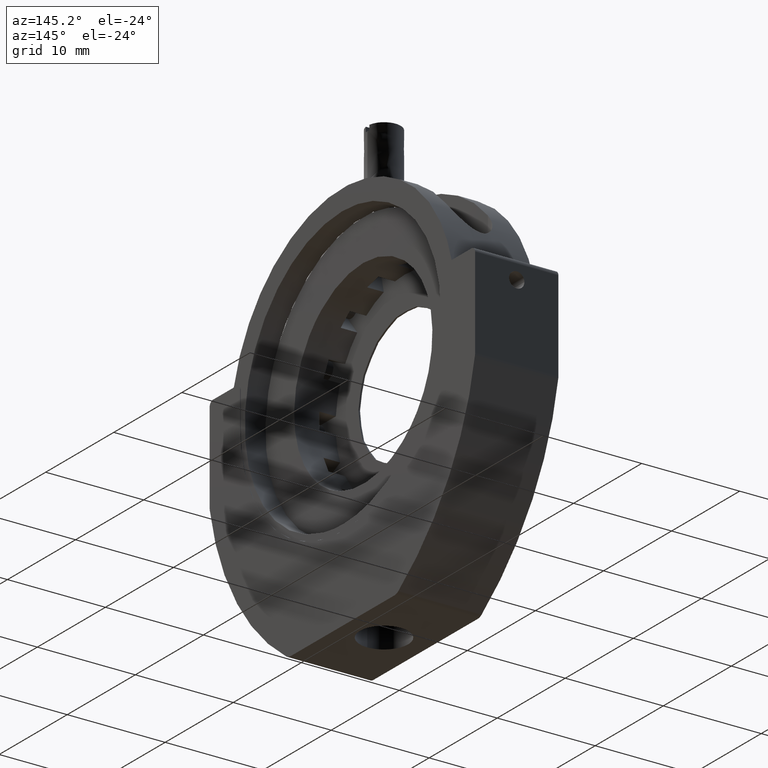
[diagram: clean part render]
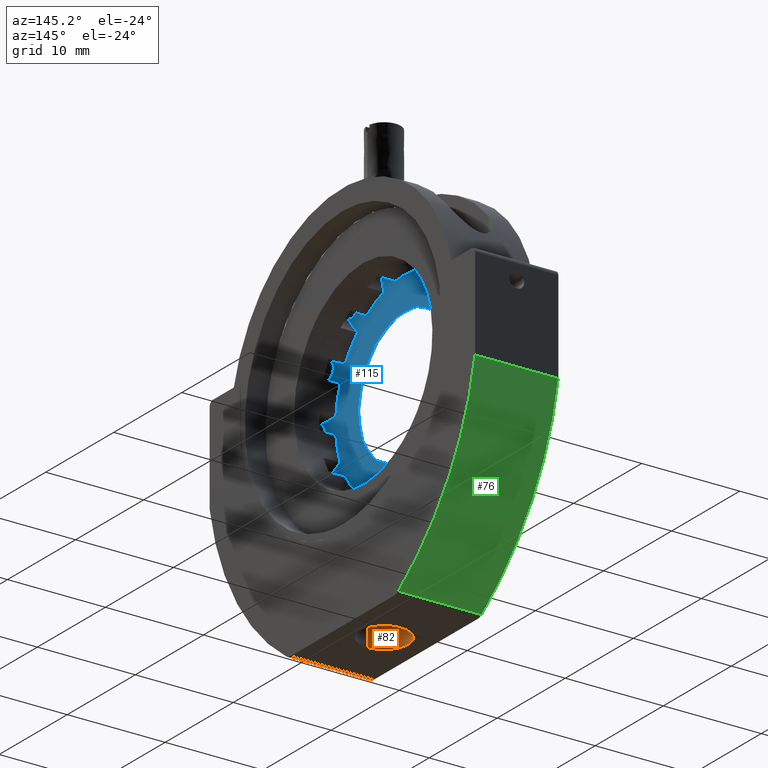
[diagram: same view with three faces highlighted in distinct colors, each labeled with its STEP entity id]
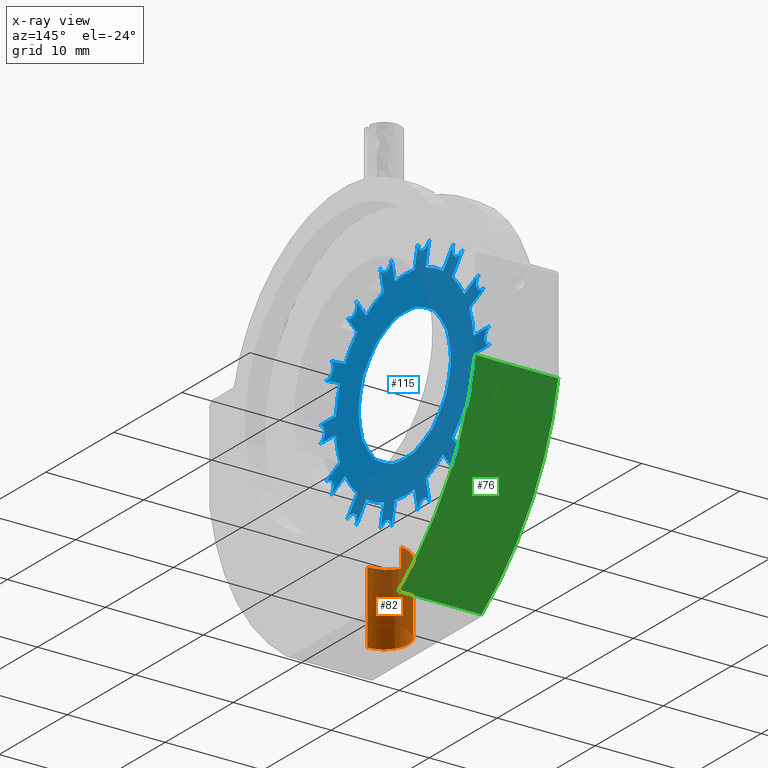
[diagram: x-ray of the same camera — body ghosted, the three highlighted faces saturated]
A machine part, auxiliary view with three faces highlighted in distinct colors.
The next image is the same camera in x-ray (body ghosted, the three faces saturated) — at least one of them is partly hidden behind the body in this view.
Their STEP definitions:

[orange] entity #82 — the highlighted face is a freeform B-spline surface patch.
#82=ADVANCED_FACE('',(#404),#5503,.T.);
#404=FACE_OUTER_BOUND('',#728,.T.);
#728=EDGE_LOOP('',(#1217,#1218,#1219,#1220));
#1217=ORIENTED_EDGE('',*,*,#3006,.T.);
#1218=ORIENTED_EDGE('',*,*,#3002,.F.);
#1219=ORIENTED_EDGE('',*,*,#3003,.F.);
#1220=ORIENTED_EDGE('',*,*,#3004,.F.);
#3002=EDGE_CURVE('',#5005,#5004,#3954,.T.);
#3003=EDGE_CURVE('',#5006,#5005,#4436,.T.);
#3004=EDGE_CURVE('',#5007,#5006,#4437,.T.);
#3006=EDGE_CURVE('',#5007,#5004,#4439,.T.);
#3954=(
BOUNDED_CURVE()
B_SPLINE_CURVE(2,(#9816,#9817,#9818,#9819,#9820),.UNSPECIFIED.,.F.,.F.)
B_SPLINE_CURVE_WITH_KNOTS((3,2,3),(0.,3.86180276942525,7.72360553885051),
 .UNSPECIFIED.)
CURVE()
GEOMETRIC_REPRESENTATION_ITEM()
RATIONAL_B_SPLINE_CURVE((1.,0.707106781186548,1.,0.707106781186548,1.))
REPRESENTATION_ITEM('')
);
#4436=B_SPLINE_CURVE_WITH_KNOTS('',1,(#9821,#9822),.UNSPECIFIED.,.F.,.F.,
(2,2),(-7.3841862676114,0.),.UNSPECIFIED.);
#4437=B_SPLINE_CURVE_WITH_KNOTS('',3,(#9823,#9824,#9825,#9826,#9827,#9828,
#9829,#9830,#9831,#9832),.UNSPECIFIED.,.F.,.F.,(4,2,2,2,4),(0.,0.185511604685136,
0.371027746996306,0.556543889307472,0.742055493992613),.UNSPECIFIED.);
#4439=B_SPLINE_CURVE_WITH_KNOTS('',1,(#9843,#9844),.UNSPECIFIED.,.F.,.F.,
(2,2),(0.85841862676114,8.24260489437255),.UNSPECIFIED.);
#5004=VERTEX_POINT('',#9077);
#5005=VERTEX_POINT('',#9078);
#5006=VERTEX_POINT('',#9079);
#5007=VERTEX_POINT('',#9080);
#5503=(
BOUNDED_SURFACE()
B_SPLINE_SURFACE(1,2,((#6499,#6500,#6501,#6502,#6503,#6504,#6505,#6506,
#6507),(#6508,#6509,#6510,#6511,#6512,#6513,#6514,#6515,#6516)),
 .UNSPECIFIED.,.F.,.F.,.F.)
B_SPLINE_SURFACE_WITH_KNOTS((2,2),(3,2,2,2,3),(0.,9.10102352113369),(0.,
1.5707963267949,3.14159265358979,4.71238898038469,6.28318530717959),
 .UNSPECIFIED.)
GEOMETRIC_REPRESENTATION_ITEM()
RATIONAL_B_SPLINE_SURFACE(((1.,0.707106781186548,1.,0.707106781186548,1.,
0.707106781186548,1.,0.707106781186548,1.),(1.,0.707106781186548,1.,0.707106781186548,
1.,0.707106781186548,1.,0.707106781186548,1.)))
REPRESENTATION_ITEM('')
SURFACE()
);
#6499=CARTESIAN_POINT('',(16.0730769230769,14.0415,-12.9341307033285));
#6500=CARTESIAN_POINT('',(13.6145769230769,14.0415,-12.9341307033285));
#6501=CARTESIAN_POINT('',(13.6145769230769,16.5,-12.9341307033285));
#6502=CARTESIAN_POINT('',(13.6145769230769,18.9585,-12.9341307033285));
#6503=CARTESIAN_POINT('',(16.0730769230769,18.9585,-12.9341307033285));
#6504=CARTESIAN_POINT('',(18.5315769230769,18.9585,-12.9341307033285));
#6505=CARTESIAN_POINT('',(18.5315769230769,16.5,-12.9341307033285));
#6506=CARTESIAN_POINT('',(18.5315769230769,14.0415,-12.9341307033285));
#6507=CARTESIAN_POINT('',(16.0730769230769,14.0415,-12.9341307033285));
#6508=CARTESIAN_POINT('',(16.0730769230769,14.0415,-22.0351542244622));
#6509=CARTESIAN_POINT('',(13.6145769230769,14.0415,-22.0351542244622));
#6510=CARTESIAN_POINT('',(13.6145769230769,16.5,-22.0351542244622));
#6511=CARTESIAN_POINT('',(13.6145769230769,18.9585,-22.0351542244622));
#6512=CARTESIAN_POINT('',(16.0730769230769,18.9585,-22.0351542244622));
#6513=CARTESIAN_POINT('',(18.5315769230769,18.9585,-22.0351542244622));
#6514=CARTESIAN_POINT('',(18.5315769230769,16.5,-22.0351542244622));
#6515=CARTESIAN_POINT('',(18.5315769230769,14.0415,-22.0351542244622));
#6516=CARTESIAN_POINT('',(16.0730769230769,14.0415,-22.0351542244622));
#9077=CARTESIAN_POINT('',(16.0730769230769,14.0415,-21.1767355977011));
#9078=CARTESIAN_POINT('',(16.0730769230769,18.9585,-21.1767355977011));
#9079=CARTESIAN_POINT('',(16.0730769230769,18.9585,-13.7925493300896));
#9080=CARTESIAN_POINT('',(16.0730769230769,14.0415,-13.7925493300896));
#9816=CARTESIAN_POINT('',(16.0730769230769,18.9585,-21.1767355977011));
#9817=CARTESIAN_POINT('',(13.6145769230769,18.9585,-21.1767355977011));
#9818=CARTESIAN_POINT('',(13.6145769230769,16.5,-21.1767355977011));
#9819=CARTESIAN_POINT('',(13.6145769230769,14.0415,-21.1767355977011));
#9820=CARTESIAN_POINT('',(16.0730769230769,14.0415,-21.1767355977011));
#9821=CARTESIAN_POINT('',(16.0730769230769,18.9585,-13.7925493300896));
#9822=CARTESIAN_POINT('',(16.0730769230769,18.9585,-21.1767355977011));
#9823=CARTESIAN_POINT('',(16.0730769230769,14.0415,-13.7925493300896));
#9824=CARTESIAN_POINT('',(15.4161760556134,14.0415,-13.7925493300896));
#9825=CARTESIAN_POINT('',(14.7872450014894,14.3089936580834,-13.8369499292608));
#9826=CARTESIAN_POINT('',(13.8820759316481,15.2141511687448,-13.9328507090408));
#9827=CARTESIAN_POINT('',(13.6145769230769,15.8432355327081,-13.9767355977011));
#9828=CARTESIAN_POINT('',(13.6145769230769,17.1567644672919,-13.9767355977011));
#9829=CARTESIAN_POINT('',(13.8820759316481,17.7858488312551,-13.9328507090408));
#9830=CARTESIAN_POINT('',(14.7872450014893,18.6910063419166,-13.8369499292608));
#9831=CARTESIAN_POINT('',(15.4161760556134,18.9585,-13.7925493300896));
#9832=CARTESIAN_POINT('',(16.0730769230769,18.9585,-13.7925493300896));
#9843=CARTESIAN_POINT('',(16.0730769230769,14.0415,-13.7925493300896));
#9844=CARTESIAN_POINT('',(16.0730769230769,14.0415,-21.1767355977011));

[blue] entity #115 — the highlighted planar face has unit normal (1, 0, 0).
#47=FACE_BOUND('',#783,.T.);
#115=ADVANCED_FACE('',(#437,#47),#5667,.T.);
#437=FACE_OUTER_BOUND('',#782,.T.);
#782=EDGE_LOOP('',(#1440,#1441,#1442,#1443,#1444,#1445,#1446,#1447,#1448,
#1449,#1450,#1451,#1452,#1453,#1454,#1455,#1456,#1457,#1458,#1459,#1460,
#1461,#1462,#1463,#1464,#1465,#1466,#1467,#1468,#1469,#1470,#1471,#1472,
#1473,#1474,#1475,#1476,#1477,#1478,#1479,#1480,#1481,#1482,#1483,#1484,
#1485,#1486,#1487,#1488,#1489,#1490,#1491,#1492,#1493,#1494,#1495,#1496,
#1497));
#783=EDGE_LOOP('',(#1498,#1499,#1500,#1501,#1502,#1503,#1504,#1505,#1506,
#1507,#1508,#1509,#1510,#1511));
#1440=ORIENTED_EDGE('',*,*,#3644,.F.);
#1441=ORIENTED_EDGE('',*,*,#3332,.F.);
#1442=ORIENTED_EDGE('',*,*,#3647,.F.);
#1443=ORIENTED_EDGE('',*,*,#3739,.F.);
#1444=ORIENTED_EDGE('',*,*,#3436,.F.);
#1445=ORIENTED_EDGE('',*,*,#3415,.F.);
#1446=ORIENTED_EDGE('',*,*,#3431,.F.);
#1447=ORIENTED_EDGE('',*,*,#3737,.F.);
#1448=ORIENTED_EDGE('',*,*,#3393,.F.);
#1449=ORIENTED_EDGE('',*,*,#3376,.F.);
#1450=ORIENTED_EDGE('',*,*,#3659,.F.);
#1451=ORIENTED_EDGE('',*,*,#3733,.F.);
#1452=ORIENTED_EDGE('',*,*,#3661,.F.);
#1453=ORIENTED_EDGE('',*,*,#3449,.F.);
#1454=ORIENTED_EDGE('',*,*,#3663,.F.);
#1455=ORIENTED_EDGE('',*,*,#3729,.F.);
#1456=ORIENTED_EDGE('',*,*,#3665,.F.);
#1457=ORIENTED_EDGE('',*,*,#3533,.F.);
#1458=ORIENTED_EDGE('',*,*,#3668,.F.);
#1459=ORIENTED_EDGE('',*,*,#3726,.F.);
#1460=ORIENTED_EDGE('',*,*,#3773,.F.);
#1461=ORIENTED_EDGE('',*,*,#3589,.F.);
#1462=ORIENTED_EDGE('',*,*,#3566,.F.);
#1463=ORIENTED_EDGE('',*,*,#3583,.F.);
#1464=ORIENTED_EDGE('',*,*,#3770,.F.);
#1465=ORIENTED_EDGE('',*,*,#3505,.F.);
#1466=ORIENTED_EDGE('',*,*,#3487,.F.);
#1467=ORIENTED_EDGE('',*,*,#3682,.F.);
#1468=ORIENTED_EDGE('',*,*,#3767,.F.);
#1469=ORIENTED_EDGE('',*,*,#3218,.F.);
#1470=ORIENTED_EDGE('',*,*,#3203,.F.);
#1471=ORIENTED_EDGE('',*,*,#3689,.F.);
#1472=ORIENTED_EDGE('',*,*,#3763,.F.);
#1473=ORIENTED_EDGE('',*,*,#3616,.F.);
#1474=ORIENTED_EDGE('',*,*,#3595,.F.);
#1475=ORIENTED_EDGE('',*,*,#3611,.F.);
#1476=ORIENTED_EDGE('',*,*,#3760,.F.);
#1477=ORIENTED_EDGE('',*,*,#3168,.F.);
#1478=ORIENTED_EDGE('',*,*,#3151,.F.);
#1479=ORIENTED_EDGE('',*,*,#3623,.F.);
#1480=ORIENTED_EDGE('',*,*,#3757,.T.);
#1481=ORIENTED_EDGE('',*,*,#3756,.T.);
#1482=ORIENTED_EDGE('',*,*,#3124,.F.);
#1483=ORIENTED_EDGE('',*,*,#3107,.F.);
#1484=ORIENTED_EDGE('',*,*,#3628,.F.);
#1485=ORIENTED_EDGE('',*,*,#3752,.F.);
#1486=ORIENTED_EDGE('',*,*,#3078,.T.);
#1487=ORIENTED_EDGE('',*,*,#3061,.F.);
#1488=ORIENTED_EDGE('',*,*,#3633,.F.);
#1489=ORIENTED_EDGE('',*,*,#3749,.F.);
#1490=ORIENTED_EDGE('',*,*,#3635,.F.);
#1491=ORIENTED_EDGE('',*,*,#3249,.F.);
#1492=ORIENTED_EDGE('',*,*,#3637,.F.);
#1493=ORIENTED_EDGE('',*,*,#3745,.F.);
#1494=ORIENTED_EDGE('',*,*,#3639,.F.);
#1495=ORIENTED_EDGE('',*,*,#3295,.F.);
#1496=ORIENTED_EDGE('',*,*,#3642,.F.);
#1497=ORIENTED_EDGE('',*,*,#3742,.F.);
#1498=ORIENTED_EDGE('',*,*,#3069,.T.);
#1499=ORIENTED_EDGE('',*,*,#3103,.F.);
#1500=ORIENTED_EDGE('',*,*,#3147,.F.);
#1501=ORIENTED_EDGE('',*,*,#3212,.F.);
#1502=ORIENTED_EDGE('',*,*,#3209,.F.);
#1503=ORIENTED_EDGE('',*,*,#3483,.F.);
#1504=ORIENTED_EDGE('',*,*,#3559,.F.);
#1505=ORIENTED_EDGE('',*,*,#3474,.F.);
#1506=ORIENTED_EDGE('',*,*,#3385,.F.);
#1507=ORIENTED_EDGE('',*,*,#3384,.F.);
#1508=ORIENTED_EDGE('',*,*,#3355,.F.);
#1509=ORIENTED_EDGE('',*,*,#3318,.F.);
#1510=ORIENTED_EDGE('',*,*,#3281,.F.);
#1511=ORIENTED_EDGE('',*,*,#3070,.T.);
#3061=EDGE_CURVE('',#5063,#5062,#3982,.T.);
#3069=EDGE_CURVE('',#5080,#5082,#3987,.T.);
#3070=EDGE_CURVE('',#5083,#5080,#3988,.T.);
#3078=EDGE_CURVE('',#5089,#5062,#4476,.T.);
#3103=EDGE_CURVE('',#5162,#5082,#4003,.T.);
#3107=EDGE_CURVE('',#5152,#5151,#4005,.T.);
#3124=EDGE_CURVE('',#5151,#5150,#4500,.T.);
#3147=EDGE_CURVE('',#5163,#5162,#4024,.T.);
#3151=EDGE_CURVE('',#5148,#5147,#4026,.T.);
#3168=EDGE_CURVE('',#5147,#5146,#4523,.T.);
#3203=EDGE_CURVE('',#5140,#5139,#4050,.T.);
#3209=EDGE_CURVE('',#5165,#5164,#4055,.T.);
#3212=EDGE_CURVE('',#5164,#5163,#4057,.T.);
#3218=EDGE_CURVE('',#5139,#5138,#4548,.T.);
#3249=EDGE_CURVE('',#5157,#5156,#4075,.T.);
#3281=EDGE_CURVE('',#5083,#5172,#4086,.T.);
#3295=EDGE_CURVE('',#5161,#5160,#4095,.T.);
#3318=EDGE_CURVE('',#5172,#5171,#4100,.T.);
#3332=EDGE_CURVE('',#5111,#5110,#4109,.T.);
#3355=EDGE_CURVE('',#5171,#5170,#4114,.T.);
#3376=EDGE_CURVE('',#5119,#5118,#4124,.T.);
#3384=EDGE_CURVE('',#5170,#5169,#4129,.T.);
#3385=EDGE_CURVE('',#5169,#5168,#4130,.T.);
#3393=EDGE_CURVE('',#5118,#5117,#4649,.T.);
#3415=EDGE_CURVE('',#5115,#5114,#4143,.T.);
#3431=EDGE_CURVE('',#5116,#5115,#4668,.T.);
#3436=EDGE_CURVE('',#5114,#5113,#4673,.T.);
#3449=EDGE_CURVE('',#5123,#5122,#4158,.T.);
#3474=EDGE_CURVE('',#5168,#5167,#4165,.T.);
#3483=EDGE_CURVE('',#5166,#5165,#4170,.T.);
#3487=EDGE_CURVE('',#5136,#5135,#4172,.T.);
#3505=EDGE_CURVE('',#5135,#5134,#4713,.T.);
#3533=EDGE_CURVE('',#5127,#5126,#4195,.T.);
#3559=EDGE_CURVE('',#5167,#5166,#4202,.T.);
#3566=EDGE_CURVE('',#5132,#5131,#4206,.T.);
#3583=EDGE_CURVE('',#5133,#5132,#4756,.T.);
#3589=EDGE_CURVE('',#5131,#5130,#4761,.T.);
#3595=EDGE_CURVE('',#5144,#5143,#4218,.T.);
#3611=EDGE_CURVE('',#5145,#5144,#4773,.T.);
#3616=EDGE_CURVE('',#5143,#5142,#4778,.T.);
#3623=EDGE_CURVE('',#5149,#5148,#4785,.T.);
#3628=EDGE_CURVE('',#5153,#5152,#4790,.T.);
#3633=EDGE_CURVE('',#5154,#5063,#4795,.T.);
#3635=EDGE_CURVE('',#5156,#5155,#4797,.T.);
#3637=EDGE_CURVE('',#5158,#5157,#4799,.T.);
#3639=EDGE_CURVE('',#5160,#5159,#4801,.T.);
#3642=EDGE_CURVE('',#5109,#5161,#4804,.T.);
#3644=EDGE_CURVE('',#5110,#5108,#4806,.T.);
#3647=EDGE_CURVE('',#5112,#5111,#4809,.T.);
#3659=EDGE_CURVE('',#5120,#5119,#4821,.T.);
#3661=EDGE_CURVE('',#5122,#5121,#4823,.T.);
#3663=EDGE_CURVE('',#5124,#5123,#4825,.T.);
#3665=EDGE_CURVE('',#5126,#5125,#4827,.T.);
#3668=EDGE_CURVE('',#5128,#5127,#4830,.T.);
#3682=EDGE_CURVE('',#5137,#5136,#4844,.T.);
#3689=EDGE_CURVE('',#5141,#5140,#4851,.T.);
#3726=EDGE_CURVE('',#5129,#5128,#4244,.T.);
#3729=EDGE_CURVE('',#5125,#5124,#4246,.T.);
#3733=EDGE_CURVE('',#5121,#5120,#4248,.T.);
#3737=EDGE_CURVE('',#5117,#5116,#4250,.T.);
#3739=EDGE_CURVE('',#5113,#5112,#4252,.T.);
#3742=EDGE_CURVE('',#5108,#5109,#4254,.T.);
#3745=EDGE_CURVE('',#5159,#5158,#4256,.T.);
#3749=EDGE_CURVE('',#5155,#5154,#4258,.T.);
#3752=EDGE_CURVE('',#5089,#5153,#4260,.T.);
#3756=EDGE_CURVE('',#5457,#5150,#4262,.T.);
#3757=EDGE_CURVE('',#5149,#5457,#4263,.T.);
#3760=EDGE_CURVE('',#5146,#5145,#4265,.T.);
#3763=EDGE_CURVE('',#5142,#5141,#4267,.T.);
#3767=EDGE_CURVE('',#5138,#5137,#4269,.T.);
#3770=EDGE_CURVE('',#5134,#5133,#4271,.T.);
#3773=EDGE_CURVE('',#5130,#5129,#4273,.T.);
#3982=(
BOUNDED_CURVE()
B_SPLINE_CURVE(2,(#10058,#10059,#10060,#10061,#10062),.UNSPECIFIED.,.F.,
 .F.)
B_SPLINE_CURVE_WITH_KNOTS((3,2,3),(-2.658270694275,-1.3291353471375,0.),
 .UNSPECIFIED.)
CURVE()
GEOMETRIC_REPRESENTATION_ITEM()
RATIONAL_B_SPLINE_CURVE((1.,0.707106782064606,1.,0.707106782064606,1.))
REPRESENTATION_ITEM('')
);
#3987=(
BOUNDED_CURVE()
B_SPLINE_CURVE(2,(#10081,#10082,#10083),.UNSPECIFIED.,.F.,.F.)
B_SPLINE_CURVE_WITH_KNOTS((3,3),(-3.04018019819335,0.),.UNSPECIFIED.)
CURVE()
GEOMETRIC_REPRESENTATION_ITEM()
RATIONAL_B_SPLINE_CURVE((1.,0.992399632679124,1.))
REPRESENTATION_ITEM('')
);
#3988=(
BOUNDED_CURVE()
B_SPLINE_CURVE(2,(#10084,#10085,#10086),.UNSPECIFIED.,.F.,.F.)
B_SPLINE_CURVE_WITH_KNOTS((3,3),(-3.04018019819411,0.),.UNSPECIFIED.)
CURVE()
GEOMETRIC_REPRESENTATION_ITEM()
RATIONAL_B_SPLINE_CURVE((1.,0.99239963267912,1.))
REPRESENTATION_ITEM('')
);
#4003=(
BOUNDED_CURVE()
B_SPLINE_CURVE(2,(#10179,#10180,#10181),.UNSPECIFIED.,.F.,.F.)
B_SPLINE_CURVE_WITH_KNOTS((3,3),(0.,3.04018019819352),.UNSPECIFIED.)
CURVE()
GEOMETRIC_REPRESENTATION_ITEM()
RATIONAL_B_SPLINE_CURVE((1.,0.992399632679121,1.))
REPRESENTATION_ITEM('')
);
#4005=(
BOUNDED_CURVE()
B_SPLINE_CURVE(2,(#10191,#10192,#10193,#10194,#10195),.UNSPECIFIED.,.F.,
 .F.)
B_SPLINE_CURVE_WITH_KNOTS((3,2,3),(-2.65827070688367,-1.32913535344184,
0.),.UNSPECIFIED.)
CURVE()
GEOMETRIC_REPRESENTATION_ITEM()
RATIONAL_B_SPLINE_CURVE((1.,0.707106781186537,1.,0.707106781186537,1.))
REPRESENTATION_ITEM('')
);
#4024=(
BOUNDED_CURVE()
B_SPLINE_CURVE(2,(#10306,#10307,#10308),.UNSPECIFIED.,.F.,.F.)
B_SPLINE_CURVE_WITH_KNOTS((3,3),(0.,3.04018019819263),.UNSPECIFIED.)
CURVE()
GEOMETRIC_REPRESENTATION_ITEM()
RATIONAL_B_SPLINE_CURVE((1.,0.992399632679127,1.))
REPRESENTATION_ITEM('')
);
#4026=(
BOUNDED_CURVE()
B_SPLINE_CURVE(2,(#10318,#10319,#10320,#10321,#10322),.UNSPECIFIED.,.F.,
 .F.)
B_SPLINE_CURVE_WITH_KNOTS((3,2,3),(-2.65827071949235,-1.32913535974617,
0.),.UNSPECIFIED.)
CURVE()
GEOMETRIC_REPRESENTATION_ITEM()
RATIONAL_B_SPLINE_CURVE((1.,0.707106780308474,1.,0.707106780308474,1.))
REPRESENTATION_ITEM('')
);
#4050=(
BOUNDED_CURVE()
B_SPLINE_CURVE(2,(#10464,#10465,#10466,#10467,#10468),.UNSPECIFIED.,.F.,
 .F.)
B_SPLINE_CURVE_WITH_KNOTS((3,2,3),(-2.65827070688367,-1.32913535344184,
0.),.UNSPECIFIED.)
CURVE()
GEOMETRIC_REPRESENTATION_ITEM()
RATIONAL_B_SPLINE_CURVE((1.,0.707106781186546,1.,0.707106781186546,1.))
REPRESENTATION_ITEM('')
);
#4055=(
BOUNDED_CURVE()
B_SPLINE_CURVE(2,(#10483,#10484,#10485),.UNSPECIFIED.,.F.,.F.)
B_SPLINE_CURVE_WITH_KNOTS((3,3),(0.,3.04018019819302),.UNSPECIFIED.)
CURVE()
GEOMETRIC_REPRESENTATION_ITEM()
RATIONAL_B_SPLINE_CURVE((1.,0.992399632679123,1.))
REPRESENTATION_ITEM('')
);
#4057=(
BOUNDED_CURVE()
B_SPLINE_CURVE(2,(#10491,#10492,#10493),.UNSPECIFIED.,.F.,.F.)
B_SPLINE_CURVE_WITH_KNOTS((3,3),(0.,3.04018019819441),.UNSPECIFIED.)
CURVE()
GEOMETRIC_REPRESENTATION_ITEM()
RATIONAL_B_SPLINE_CURVE((1.,0.992399632679117,1.))
REPRESENTATION_ITEM('')
);
#4075=(
BOUNDED_CURVE()
B_SPLINE_CURVE(2,(#10595,#10596,#10597,#10598,#10599),.UNSPECIFIED.,.F.,
 .F.)
B_SPLINE_CURVE_WITH_KNOTS((3,2,3),(-2.658270694275,-1.3291353471375,0.),
 .UNSPECIFIED.)
CURVE()
GEOMETRIC_REPRESENTATION_ITEM()
RATIONAL_B_SPLINE_CURVE((1.,0.707106781625578,1.,0.707106781625578,1.))
REPRESENTATION_ITEM('')
);
#4086=(
BOUNDED_CURVE()
B_SPLINE_CURVE(2,(#10686,#10687,#10688),.UNSPECIFIED.,.F.,.F.)
B_SPLINE_CURVE_WITH_KNOTS((3,3),(0.,3.04018019819236),.UNSPECIFIED.)
CURVE()
GEOMETRIC_REPRESENTATION_ITEM()
RATIONAL_B_SPLINE_CURVE((1.,0.992399632679127,1.))
REPRESENTATION_ITEM('')
);
#4095=(
BOUNDED_CURVE()
B_SPLINE_CURVE(2,(#10725,#10726,#10727,#10728,#10729),.UNSPECIFIED.,.F.,
 .F.)
B_SPLINE_CURVE_WITH_KNOTS((3,2,3),(-2.65827070688367,-1.32913535344184,
0.),.UNSPECIFIED.)
CURVE()
GEOMETRIC_REPRESENTATION_ITEM()
RATIONAL_B_SPLINE_CURVE((1.,0.707106781186548,1.,0.707106781186548,1.))
REPRESENTATION_ITEM('')
);
#4100=(
BOUNDED_CURVE()
B_SPLINE_CURVE(2,(#10782,#10783,#10784),.UNSPECIFIED.,.F.,.F.)
B_SPLINE_CURVE_WITH_KNOTS((3,3),(0.,3.04018019819385),.UNSPECIFIED.)
CURVE()
GEOMETRIC_REPRESENTATION_ITEM()
RATIONAL_B_SPLINE_CURVE((1.,0.99239963267912,1.))
REPRESENTATION_ITEM('')
);
#4109=(
BOUNDED_CURVE()
B_SPLINE_CURVE(2,(#10821,#10822,#10823,#10824,#10825),.UNSPECIFIED.,.F.,
 .F.)
B_SPLINE_CURVE_WITH_KNOTS((3,2,3),(-2.65827071949235,-1.32913535974617,
0.),.UNSPECIFIED.)
CURVE()
GEOMETRIC_REPRESENTATION_ITEM()
RATIONAL_B_SPLINE_CURVE((1.,0.707106780308487,1.,0.707106780308487,1.))
REPRESENTATION_ITEM('')
);
#4114=(
BOUNDED_CURVE()
B_SPLINE_CURVE(2,(#10878,#10879,#10880),.UNSPECIFIED.,.F.,.F.)
B_SPLINE_CURVE_WITH_KNOTS((3,3),(0.,3.04018019819355),.UNSPECIFIED.)
CURVE()
GEOMETRIC_REPRESENTATION_ITEM()
RATIONAL_B_SPLINE_CURVE((1.,0.992399632679123,1.))
REPRESENTATION_ITEM('')
);
#4124=(
BOUNDED_CURVE()
B_SPLINE_CURVE(2,(#10936,#10937,#10938,#10939,#10940),.UNSPECIFIED.,.F.,
 .F.)
B_SPLINE_CURVE_WITH_KNOTS((3,2,3),(-2.65827068166632,-1.32913534083316,
0.),.UNSPECIFIED.)
CURVE()
GEOMETRIC_REPRESENTATION_ITEM()
RATIONAL_B_SPLINE_CURVE((1.,0.707106782685487,1.,0.707106782685487,1.))
REPRESENTATION_ITEM('')
);
#4129=(
BOUNDED_CURVE()
B_SPLINE_CURVE(2,(#10959,#10960,#10961),.UNSPECIFIED.,.F.,.F.)
B_SPLINE_CURVE_WITH_KNOTS((3,3),(0.,3.0401801981934),.UNSPECIFIED.)
CURVE()
GEOMETRIC_REPRESENTATION_ITEM()
RATIONAL_B_SPLINE_CURVE((1.,0.992399632679121,1.))
REPRESENTATION_ITEM('')
);
#4130=(
BOUNDED_CURVE()
B_SPLINE_CURVE(2,(#10962,#10963,#10964),.UNSPECIFIED.,.F.,.F.)
B_SPLINE_CURVE_WITH_KNOTS((3,3),(0.,3.04018019819341),.UNSPECIFIED.)
CURVE()
GEOMETRIC_REPRESENTATION_ITEM()
RATIONAL_B_SPLINE_CURVE((1.,0.992399632679123,1.))
REPRESENTATION_ITEM('')
);
#4143=(
BOUNDED_CURVE()
B_SPLINE_CURVE(2,(#11051,#11052,#11053,#11054,#11055),.UNSPECIFIED.,.F.,
 .F.)
B_SPLINE_CURVE_WITH_KNOTS((3,2,3),(-2.65827070688367,-1.32913535344184,
0.),.UNSPECIFIED.)
CURVE()
GEOMETRIC_REPRESENTATION_ITEM()
RATIONAL_B_SPLINE_CURVE((1.,0.707106781625578,1.,0.707106781625578,1.))
REPRESENTATION_ITEM('')
);
#4158=(
BOUNDED_CURVE()
B_SPLINE_CURVE(2,(#11140,#11141,#11142,#11143,#11144),.UNSPECIFIED.,.F.,
 .F.)
B_SPLINE_CURVE_WITH_KNOTS((3,2,3),(-2.658270694275,-1.3291353471375,0.),
 .UNSPECIFIED.)
CURVE()
GEOMETRIC_REPRESENTATION_ITEM()
RATIONAL_B_SPLINE_CURVE((1.,0.707106781625578,1.,0.707106781625578,1.))
REPRESENTATION_ITEM('')
);
#4165=(
BOUNDED_CURVE()
B_SPLINE_CURVE(2,(#11203,#11204,#11205),.UNSPECIFIED.,.F.,.F.)
B_SPLINE_CURVE_WITH_KNOTS((3,3),(0.,3.04018019819328),.UNSPECIFIED.)
CURVE()
GEOMETRIC_REPRESENTATION_ITEM()
RATIONAL_B_SPLINE_CURVE((1.,0.992399632679124,1.))
REPRESENTATION_ITEM('')
);
#4170=(
BOUNDED_CURVE()
B_SPLINE_CURVE(2,(#11230,#11231,#11232),.UNSPECIFIED.,.F.,.F.)
B_SPLINE_CURVE_WITH_KNOTS((3,3),(0.,3.04018019819325),.UNSPECIFIED.)
CURVE()
GEOMETRIC_REPRESENTATION_ITEM()
RATIONAL_B_SPLINE_CURVE((1.,0.992399632679122,1.))
REPRESENTATION_ITEM('')
);
#4172=(
BOUNDED_CURVE()
B_SPLINE_CURVE(2,(#11242,#11243,#11244,#11245,#11246),.UNSPECIFIED.,.F.,
 .F.)
B_SPLINE_CURVE_WITH_KNOTS((3,2,3),(-2.65827070688367,-1.32913535344184,
0.),.UNSPECIFIED.)
CURVE()
GEOMETRIC_REPRESENTATION_ITEM()
RATIONAL_B_SPLINE_CURVE((1.,0.707106781186547,1.,0.707106781186547,1.))
REPRESENTATION_ITEM('')
);
#4195=(
BOUNDED_CURVE()
B_SPLINE_CURVE(2,(#11371,#11372,#11373,#11374,#11375),.UNSPECIFIED.,.F.,
 .F.)
B_SPLINE_CURVE_WITH_KNOTS((3,2,3),(-2.65827070688367,-1.32913535344184,
0.),.UNSPECIFIED.)
CURVE()
GEOMETRIC_REPRESENTATION_ITEM()
RATIONAL_B_SPLINE_CURVE((1.,0.707106781186558,1.,0.707106781186558,1.))
REPRESENTATION_ITEM('')
);
#4202=(
BOUNDED_CURVE()
B_SPLINE_CURVE(2,(#11436,#11437,#11438),.UNSPECIFIED.,.F.,.F.)
B_SPLINE_CURVE_WITH_KNOTS((3,3),(0.,3.04018019819371),.UNSPECIFIED.)
CURVE()
GEOMETRIC_REPRESENTATION_ITEM()
RATIONAL_B_SPLINE_CURVE((1.,0.992399632679121,1.))
REPRESENTATION_ITEM('')
);
#4206=(
BOUNDED_CURVE()
B_SPLINE_CURVE(2,(#11458,#11459,#11460,#11461,#11462),.UNSPECIFIED.,.F.,
 .F.)
B_SPLINE_CURVE_WITH_KNOTS((3,2,3),(-2.65827070688367,-1.32913535344184,
0.),.UNSPECIFIED.)
CURVE()
GEOMETRIC_REPRESENTATION_ITEM()
RATIONAL_B_SPLINE_CURVE((1.,0.707106781186547,1.,0.707106781186547,1.))
REPRESENTATION_ITEM('')
);
#4218=(
BOUNDED_CURVE()
B_SPLINE_CURVE(2,(#11536,#11537,#11538,#11539,#11540),.UNSPECIFIED.,.F.,
 .F.)
B_SPLINE_CURVE_WITH_KNOTS((3,2,3),(-2.65827072471503,-1.32913536235751,
0.),.UNSPECIFIED.)
CURVE()
GEOMETRIC_REPRESENTATION_ITEM()
RATIONAL_B_SPLINE_CURVE((1.,0.707106780126628,1.,0.707106780126628,1.))
REPRESENTATION_ITEM('')
);
#4244=(
BOUNDED_CURVE()
B_SPLINE_CURVE(2,(#11910,#11911,#11912),.UNSPECIFIED.,.F.,.F.)
B_SPLINE_CURVE_WITH_KNOTS((3,3),(-1.43138148471113,0.),.UNSPECIFIED.)
CURVE()
GEOMETRIC_REPRESENTATION_ITEM()
RATIONAL_B_SPLINE_CURVE((1.,0.997516982176954,1.))
REPRESENTATION_ITEM('')
);
#4246=(
BOUNDED_CURVE()
B_SPLINE_CURVE(2,(#11918,#11919,#11920),.UNSPECIFIED.,.F.,.F.)
B_SPLINE_CURVE_WITH_KNOTS((3,3),(-2.86276296942242,0.),.UNSPECIFIED.)
CURVE()
GEOMETRIC_REPRESENTATION_ITEM()
RATIONAL_B_SPLINE_CURVE((1.,0.990080259462833,1.))
REPRESENTATION_ITEM('')
);
#4248=(
BOUNDED_CURVE()
B_SPLINE_CURVE(2,(#11928,#11929,#11930),.UNSPECIFIED.,.F.,.F.)
B_SPLINE_CURVE_WITH_KNOTS((3,3),(-2.86276296942241,0.),.UNSPECIFIED.)
CURVE()
GEOMETRIC_REPRESENTATION_ITEM()
RATIONAL_B_SPLINE_CURVE((1.,0.990080259462833,1.))
REPRESENTATION_ITEM('')
);
#4250=(
BOUNDED_CURVE()
B_SPLINE_CURVE(2,(#11938,#11939,#11940),.UNSPECIFIED.,.F.,.F.)
B_SPLINE_CURVE_WITH_KNOTS((3,3),(-2.86276296942243,0.),.UNSPECIFIED.)
CURVE()
GEOMETRIC_REPRESENTATION_ITEM()
RATIONAL_B_SPLINE_CURVE((1.,0.990080259462832,1.))
REPRESENTATION_ITEM('')
);
#4252=(
BOUNDED_CURVE()
B_SPLINE_CURVE(2,(#11944,#11945,#11946),.UNSPECIFIED.,.F.,.F.)
B_SPLINE_CURVE_WITH_KNOTS((3,3),(-2.8627629694224,0.),.UNSPECIFIED.)
CURVE()
GEOMETRIC_REPRESENTATION_ITEM()
RATIONAL_B_SPLINE_CURVE((1.,0.990080259462833,1.))
REPRESENTATION_ITEM('')
);
#4254=(
BOUNDED_CURVE()
B_SPLINE_CURVE(2,(#11952,#11953,#11954),.UNSPECIFIED.,.F.,.F.)
B_SPLINE_CURVE_WITH_KNOTS((3,3),(-2.86276296942243,0.),.UNSPECIFIED.)
CURVE()
GEOMETRIC_REPRESENTATION_ITEM()
RATIONAL_B_SPLINE_CURVE((1.,0.990080259462833,1.))
REPRESENTATION_ITEM('')
);
#4256=(
BOUNDED_CURVE()
B_SPLINE_CURVE(2,(#11960,#11961,#11962),.UNSPECIFIED.,.F.,.F.)
B_SPLINE_CURVE_WITH_KNOTS((3,3),(-2.86276296942233,0.),.UNSPECIFIED.)
CURVE()
GEOMETRIC_REPRESENTATION_ITEM()
RATIONAL_B_SPLINE_CURVE((1.,0.990080259462834,1.))
REPRESENTATION_ITEM('')
);
#4258=(
BOUNDED_CURVE()
B_SPLINE_CURVE(2,(#11970,#11971,#11972),.UNSPECIFIED.,.F.,.F.)
B_SPLINE_CURVE_WITH_KNOTS((3,3),(-2.86276296942242,0.),.UNSPECIFIED.)
CURVE()
GEOMETRIC_REPRESENTATION_ITEM()
RATIONAL_B_SPLINE_CURVE((1.,0.990080259462832,1.))
REPRESENTATION_ITEM('')
);
#4260=(
BOUNDED_CURVE()
B_SPLINE_CURVE(2,(#11978,#11979,#11980),.UNSPECIFIED.,.F.,.F.)
B_SPLINE_CURVE_WITH_KNOTS((3,3),(-2.86276296942245,0.),.UNSPECIFIED.)
CURVE()
GEOMETRIC_REPRESENTATION_ITEM()
RATIONAL_B_SPLINE_CURVE((1.,0.990080259462834,1.))
REPRESENTATION_ITEM('')
);
#4262=(
BOUNDED_CURVE()
B_SPLINE_CURVE(2,(#11988,#11989,#11990),.UNSPECIFIED.,.F.,.F.)
B_SPLINE_CURVE_WITH_KNOTS((3,3),(1.43138148471126,2.86276296942241),
 .UNSPECIFIED.)
CURVE()
GEOMETRIC_REPRESENTATION_ITEM()
RATIONAL_B_SPLINE_CURVE((1.,0.997516982176952,1.))
REPRESENTATION_ITEM('')
);
#4263=(
BOUNDED_CURVE()
B_SPLINE_CURVE(2,(#11991,#11992,#11993),.UNSPECIFIED.,.F.,.F.)
B_SPLINE_CURVE_WITH_KNOTS((3,3),(0.,1.43138148471126),.UNSPECIFIED.)
CURVE()
GEOMETRIC_REPRESENTATION_ITEM()
RATIONAL_B_SPLINE_CURVE((1.,0.997516982176953,1.))
REPRESENTATION_ITEM('')
);
#4265=(
BOUNDED_CURVE()
B_SPLINE_CURVE(2,(#11999,#12000,#12001),.UNSPECIFIED.,.F.,.F.)
B_SPLINE_CURVE_WITH_KNOTS((3,3),(-2.86276296942245,0.),.UNSPECIFIED.)
CURVE()
GEOMETRIC_REPRESENTATION_ITEM()
RATIONAL_B_SPLINE_CURVE((1.,0.990080259462833,1.))
REPRESENTATION_ITEM('')
);
#4267=(
BOUNDED_CURVE()
B_SPLINE_CURVE(2,(#12007,#12008,#12009),.UNSPECIFIED.,.F.,.F.)
B_SPLINE_CURVE_WITH_KNOTS((3,3),(-2.86276296942238,0.),.UNSPECIFIED.)
CURVE()
GEOMETRIC_REPRESENTATION_ITEM()
RATIONAL_B_SPLINE_CURVE((1.,0.990080259462834,1.))
REPRESENTATION_ITEM('')
);
#4269=(
BOUNDED_CURVE()
B_SPLINE_CURVE(2,(#12017,#12018,#12019),.UNSPECIFIED.,.F.,.F.)
B_SPLINE_CURVE_WITH_KNOTS((3,3),(-2.86276296942233,0.),.UNSPECIFIED.)
CURVE()
GEOMETRIC_REPRESENTATION_ITEM()
RATIONAL_B_SPLINE_CURVE((1.,0.990080259462835,1.))
REPRESENTATION_ITEM('')
);
#4271=(
BOUNDED_CURVE()
B_SPLINE_CURVE(2,(#12025,#12026,#12027),.UNSPECIFIED.,.F.,.F.)
B_SPLINE_CURVE_WITH_KNOTS((3,3),(-2.86276296942243,0.),.UNSPECIFIED.)
CURVE()
GEOMETRIC_REPRESENTATION_ITEM()
RATIONAL_B_SPLINE_CURVE((1.,0.990080259462834,1.))
REPRESENTATION_ITEM('')
);
#4273=(
BOUNDED_CURVE()
B_SPLINE_CURVE(2,(#12033,#12034,#12035),.UNSPECIFIED.,.F.,.F.)
B_SPLINE_CURVE_WITH_KNOTS((3,3),(-1.43138148471124,0.),.UNSPECIFIED.)
CURVE()
GEOMETRIC_REPRESENTATION_ITEM()
RATIONAL_B_SPLINE_CURVE((1.,0.997516982176952,1.))
REPRESENTATION_ITEM('')
);
#4476=B_SPLINE_CURVE_WITH_KNOTS('',1,(#10102,#10103),.UNSPECIFIED.,.F.,
 .F.,(2,2),(0.,2.45439166832404),.UNSPECIFIED.);
#4500=B_SPLINE_CURVE_WITH_KNOTS('',1,(#10234,#10235),.UNSPECIFIED.,.F.,
 .F.,(2,2),(-2.45439166832403,0.),.UNSPECIFIED.);
#4523=B_SPLINE_CURVE_WITH_KNOTS('',1,(#10361,#10362),.UNSPECIFIED.,.F.,
 .F.,(2,2),(-2.45439166832403,0.),.UNSPECIFIED.);
#4548=B_SPLINE_CURVE_WITH_KNOTS('',1,(#10504,#10505),.UNSPECIFIED.,.F.,
 .F.,(2,2),(-2.454391668324,0.),.UNSPECIFIED.);
#4649=B_SPLINE_CURVE_WITH_KNOTS('',1,(#10980,#10981),.UNSPECIFIED.,.F.,
 .F.,(2,2),(-2.45439166832405,0.),.UNSPECIFIED.);
#4668=B_SPLINE_CURVE_WITH_KNOTS('',1,(#11095,#11096),.UNSPECIFIED.,.F.,
 .F.,(2,2),(-2.45439166832403,0.),.UNSPECIFIED.);
#4673=B_SPLINE_CURVE_WITH_KNOTS('',1,(#11105,#11106),.UNSPECIFIED.,.F.,
 .F.,(2,2),(-2.45439166832403,0.),.UNSPECIFIED.);
#4713=B_SPLINE_CURVE_WITH_KNOTS('',1,(#11288,#11289),.UNSPECIFIED.,.F.,
 .F.,(2,2),(-2.454391668324,0.),.UNSPECIFIED.);
#4756=B_SPLINE_CURVE_WITH_KNOTS('',1,(#11505,#11506),.UNSPECIFIED.,.F.,
 .F.,(2,2),(-2.454391668324,0.),.UNSPECIFIED.);
#4761=B_SPLINE_CURVE_WITH_KNOTS('',1,(#11518,#11519),.UNSPECIFIED.,.F.,
 .F.,(2,2),(-2.45439166832409,0.),.UNSPECIFIED.);
#4773=B_SPLINE_CURVE_WITH_KNOTS('',1,(#11580,#11581),.UNSPECIFIED.,.F.,
 .F.,(2,2),(-2.45439166832408,0.),.UNSPECIFIED.);
#4778=B_SPLINE_CURVE_WITH_KNOTS('',1,(#11590,#11591),.UNSPECIFIED.,.F.,
 .F.,(2,2),(-2.45439166832408,0.),.UNSPECIFIED.);
#4785=B_SPLINE_CURVE_WITH_KNOTS('',1,(#11604,#11605),.UNSPECIFIED.,.F.,
 .F.,(2,2),(-2.45439166832401,0.),.UNSPECIFIED.);
#4790=B_SPLINE_CURVE_WITH_KNOTS('',1,(#11614,#11615),.UNSPECIFIED.,.F.,
 .F.,(2,2),(-2.45439166832403,0.),.UNSPECIFIED.);
#4795=B_SPLINE_CURVE_WITH_KNOTS('',1,(#11624,#11625),.UNSPECIFIED.,.F.,
 .F.,(2,2),(-2.45439166832398,0.),.UNSPECIFIED.);
#4797=B_SPLINE_CURVE_WITH_KNOTS('',1,(#11628,#11629),.UNSPECIFIED.,.F.,
 .F.,(2,2),(-2.45439166832402,0.),.UNSPECIFIED.);
#4799=B_SPLINE_CURVE_WITH_KNOTS('',1,(#11632,#11633),.UNSPECIFIED.,.F.,
 .F.,(2,2),(-2.45439166832402,0.),.UNSPECIFIED.);
#4801=B_SPLINE_CURVE_WITH_KNOTS('',1,(#11636,#11637),.UNSPECIFIED.,.F.,
 .F.,(2,2),(-2.45439166832403,0.),.UNSPECIFIED.);
#4804=B_SPLINE_CURVE_WITH_KNOTS('',1,(#11642,#11643),.UNSPECIFIED.,.F.,
 .F.,(2,2),(-2.45439166832403,0.),.UNSPECIFIED.);
#4806=B_SPLINE_CURVE_WITH_KNOTS('',1,(#11646,#11647),.UNSPECIFIED.,.F.,
 .F.,(2,2),(-2.45439166832403,0.),.UNSPECIFIED.);
#4809=B_SPLINE_CURVE_WITH_KNOTS('',1,(#11652,#11653),.UNSPECIFIED.,.F.,
 .F.,(2,2),(-2.45439166832403,0.),.UNSPECIFIED.);
#4821=B_SPLINE_CURVE_WITH_KNOTS('',1,(#11676,#11677),.UNSPECIFIED.,.F.,
 .F.,(2,2),(-2.45439166832405,0.),.UNSPECIFIED.);
#4823=B_SPLINE_CURVE_WITH_KNOTS('',1,(#11680,#11681),.UNSPECIFIED.,.F.,
 .F.,(2,2),(-2.45439166832402,0.),.UNSPECIFIED.);
#4825=B_SPLINE_CURVE_WITH_KNOTS('',1,(#11684,#11685),.UNSPECIFIED.,.F.,
 .F.,(2,2),(-2.45439166832405,0.),.UNSPECIFIED.);
#4827=B_SPLINE_CURVE_WITH_KNOTS('',1,(#11688,#11689),.UNSPECIFIED.,.F.,
 .F.,(2,2),(-2.45439166832405,0.),.UNSPECIFIED.);
#4830=B_SPLINE_CURVE_WITH_KNOTS('',1,(#11694,#11695),.UNSPECIFIED.,.F.,
 .F.,(2,2),(-2.45439166832398,0.),.UNSPECIFIED.);
#4844=B_SPLINE_CURVE_WITH_KNOTS('',1,(#11722,#11723),.UNSPECIFIED.,.F.,
 .F.,(2,2),(-2.454391668324,0.),.UNSPECIFIED.);
#4851=B_SPLINE_CURVE_WITH_KNOTS('',1,(#11736,#11737),.UNSPECIFIED.,.F.,
 .F.,(2,2),(-2.45439166832409,0.),.UNSPECIFIED.);
#5062=VERTEX_POINT('',#9135);
#5063=VERTEX_POINT('',#9136);
#5080=VERTEX_POINT('',#9153);
#5082=VERTEX_POINT('',#9155);
#5083=VERTEX_POINT('',#9156);
#5089=VERTEX_POINT('',#9162);
#5108=VERTEX_POINT('',#9181);
#5109=VERTEX_POINT('',#9182);
#5110=VERTEX_POINT('',#9183);
#5111=VERTEX_POINT('',#9184);
#5112=VERTEX_POINT('',#9185);
#5113=VERTEX_POINT('',#9186);
#5114=VERTEX_POINT('',#9187);
#5115=VERTEX_POINT('',#9188);
#5116=VERTEX_POINT('',#9189);
#5117=VERTEX_POINT('',#9190);
#5118=VERTEX_POINT('',#9191);
#5119=VERTEX_POINT('',#9192);
#5120=VERTEX_POINT('',#9193);
#5121=VERTEX_POINT('',#9194);
#5122=VERTEX_POINT('',#9195);
#5123=VERTEX_POINT('',#9196);
#5124=VERTEX_POINT('',#9197);
#5125=VERTEX_POINT('',#9198);
#5126=VERTEX_POINT('',#9199);
#5127=VERTEX_POINT('',#9200);
#5128=VERTEX_POINT('',#9201);
#5129=VERTEX_POINT('',#9202);
#5130=VERTEX_POINT('',#9203);
#5131=VERTEX_POINT('',#9204);
#5132=VERTEX_POINT('',#9205);
#5133=VERTEX_POINT('',#9206);
#5134=VERTEX_POINT('',#9207);
#5135=VERTEX_POINT('',#9208);
#5136=VERTEX_POINT('',#9209);
#5137=VERTEX_POINT('',#9210);
#5138=VERTEX_POINT('',#9211);
#5139=VERTEX_POINT('',#9212);
#5140=VERTEX_POINT('',#9213);
#5141=VERTEX_POINT('',#9214);
#5142=VERTEX_POINT('',#9215);
#5143=VERTEX_POINT('',#9216);
#5144=VERTEX_POINT('',#9217);
#5145=VERTEX_POINT('',#9218);
#5146=VERTEX_POINT('',#9219);
#5147=VERTEX_POINT('',#9220);
#5148=VERTEX_POINT('',#9221);
#5149=VERTEX_POINT('',#9222);
#5150=VERTEX_POINT('',#9223);
#5151=VERTEX_POINT('',#9224);
#5152=VERTEX_POINT('',#9225);
#5153=VERTEX_POINT('',#9226);
#5154=VERTEX_POINT('',#9227);
#5155=VERTEX_POINT('',#9228);
#5156=VERTEX_POINT('',#9229);
#5157=VERTEX_POINT('',#9230);
#5158=VERTEX_POINT('',#9231);
#5159=VERTEX_POINT('',#9232);
#5160=VERTEX_POINT('',#9233);
#5161=VERTEX_POINT('',#9234);
#5162=VERTEX_POINT('',#9235);
#5163=VERTEX_POINT('',#9236);
#5164=VERTEX_POINT('',#9237);
#5165=VERTEX_POINT('',#9238);
#5166=VERTEX_POINT('',#9239);
#5167=VERTEX_POINT('',#9240);
#5168=VERTEX_POINT('',#9241);
#5169=VERTEX_POINT('',#9242);
#5170=VERTEX_POINT('',#9243);
#5171=VERTEX_POINT('',#9244);
#5172=VERTEX_POINT('',#9245);
#5457=VERTEX_POINT('',#9530);
#5667=PLANE('',#5860);
#5860=AXIS2_PLACEMENT_3D('',#6754,#6036,$);
#6036=DIRECTION('',(1.,0.,0.));
#6754=CARTESIAN_POINT('',(13.9576923076923,38.344143405175,16.0367115774206));
#9135=CARTESIAN_POINT('',(13.9576923076923,9.32246232426188,12.8807373688087));
#9136=CARTESIAN_POINT('',(13.9576923076923,7.99936289239293,11.8256007810477));
#9153=CARTESIAN_POINT('',(13.9576923076923,12.1021553341152,-2.68137755094178));
#9155=CARTESIAN_POINT('',(13.9576923076923,10.2794693587269,-0.257802678457526));
#9156=CARTESIAN_POINT('',(13.9576923076923,14.7958883816079,-4.07410925384236));
#9162=CARTESIAN_POINT('',(13.9576923076923,10.8527504979187,10.9618166938487));
#9181=CARTESIAN_POINT('',(13.9576923076923,7.01638859907481,-1.10464222718016));
#9182=CARTESIAN_POINT('',(13.9576923076923,6.38147167891418,1.67711055614513));
#9183=CARTESIAN_POINT('',(13.9576923076923,4.80505811438246,-2.16956286240334));
#9184=CARTESIAN_POINT('',(13.9576923076923,5.53932290365834,-3.69427940808435));
#9185=CARTESIAN_POINT('',(13.9576923076923,7.75065338835068,-2.62935877286118));
#9186=CARTESIAN_POINT('',(13.9576923076923,9.52965106604973,-4.86015130148986));
#9187=CARTESIAN_POINT('',(13.9576923076923,7.9993628923929,-6.77907197644982));
#9188=CARTESIAN_POINT('',(13.9576923076923,9.32246232295164,-7.83420856585374));
#9189=CARTESIAN_POINT('',(13.9576923076923,10.8527504979187,-5.91528788925079));
#9190=CARTESIAN_POINT('',(13.9576923076923,13.4234766251132,-7.15328434401303));
#9191=CARTESIAN_POINT('',(13.9576923076923,12.8773230994444,-9.54613928599124));
#9192=CARTESIAN_POINT('',(13.9576923076923,14.5272011049491,-9.92271317302486));
#9193=CARTESIAN_POINT('',(13.9576923076923,15.073354630344,-7.52985823224679));
#9194=CARTESIAN_POINT('',(13.9576923076923,17.9266453696561,-7.52985823224679));
#9195=CARTESIAN_POINT('',(13.9576923076923,18.4727988959861,-9.92271317712238));
#9196=CARTESIAN_POINT('',(13.9576923076923,20.1226769007493,-9.54613928683986));
#9197=CARTESIAN_POINT('',(13.9576923076923,19.5765233748868,-7.15328434401303));
#9198=CARTESIAN_POINT('',(13.9576923076923,22.1472495020813,-5.9152878892508));
#9199=CARTESIAN_POINT('',(13.9576923076923,23.6775376770484,-7.83420856585375));
#9200=CARTESIAN_POINT('',(13.9576923076923,25.0006371089173,-6.77907197809277));
#9201=CARTESIAN_POINT('',(13.9576923076923,23.4703489339503,-4.86015130148985));
#9202=CARTESIAN_POINT('',(13.9576923076923,24.4385965912139,-3.80755512426671));
#9203=CARTESIAN_POINT('',(13.9576923076923,25.2493466116493,-2.62935877286117));
#9204=CARTESIAN_POINT('',(13.9576923076923,27.4606770944484,-3.69427940717258));
#9205=CARTESIAN_POINT('',(13.9576923076923,28.1949418837242,-2.16956286149155));
#9206=CARTESIAN_POINT('',(13.9576923076923,25.9836114009252,-1.10464222718016));
#9207=CARTESIAN_POINT('',(13.9576923076923,26.6185283210858,1.67711055614514));
#9208=CARTESIAN_POINT('',(13.9576923076923,29.0729199894098,1.67711055614512));
#9209=CARTESIAN_POINT('',(13.9576923076923,29.0729199894098,3.36941824845278));
#9210=CARTESIAN_POINT('',(13.9576923076923,26.6185283210858,3.36941824845281));
#9211=CARTESIAN_POINT('',(13.9576923076923,25.9836114009252,6.15117103177804));
#9212=CARTESIAN_POINT('',(13.9576923076923,28.1949418837242,7.21609166608943));
#9213=CARTESIAN_POINT('',(13.9576923076923,27.4606770944484,8.74080821177048));
#9214=CARTESIAN_POINT('',(13.9576923076923,25.2493466116493,7.67588757745907));
#9215=CARTESIAN_POINT('',(13.9576923076923,23.4703489339503,9.90668010608773));
#9216=CARTESIAN_POINT('',(13.9576923076923,25.0006371102276,11.8256007843337));
#9217=CARTESIAN_POINT('',(13.9576923076923,23.6775376789013,12.8807373727751));
#9218=CARTESIAN_POINT('',(13.9576923076923,22.1472495020813,10.9618166938487));
#9219=CARTESIAN_POINT('',(13.9576923076923,19.5765233748868,12.1998131486109));
#9220=CARTESIAN_POINT('',(13.9576923076923,20.1226769016845,14.5926680955353));
#9221=CARTESIAN_POINT('',(13.9576923076923,18.4727988964537,14.969241983769));
#9222=CARTESIAN_POINT('',(13.9576923076923,17.9266453696561,12.5763870368447));
#9223=CARTESIAN_POINT('',(13.9576923076923,15.073354630344,12.5763870368447));
#9224=CARTESIAN_POINT('',(13.9576923076923,14.5272011040139,14.9692419817202));
#9225=CARTESIAN_POINT('',(13.9576923076923,12.8773230987831,14.5926680934865));
#9226=CARTESIAN_POINT('',(13.9576923076923,13.4234766251132,12.1998131486109));
#9227=CARTESIAN_POINT('',(13.9576923076923,9.52965106604975,9.90668010608776));
#9228=CARTESIAN_POINT('',(13.9576923076923,7.75065338835069,7.67588757745908));
#9229=CARTESIAN_POINT('',(13.9576923076923,5.53932290555169,8.74080821177047));
#9230=CARTESIAN_POINT('',(13.9576923076923,4.80505811816914,7.21609166517765));
#9231=CARTESIAN_POINT('',(13.9576923076923,7.01638859907481,6.15117103177804));
#9232=CARTESIAN_POINT('',(13.9576923076923,6.38147167891418,3.36941824845284));
#9233=CARTESIAN_POINT('',(13.9576923076923,3.92708001059018,3.36941824845281));
#9234=CARTESIAN_POINT('',(13.9576923076923,3.92708001059018,1.67711055614512));
#9235=CARTESIAN_POINT('',(13.9576923076923,9.68883576664445,2.71659663692014));
#9236=CARTESIAN_POINT('',(13.9576923076923,10.4472367844253,5.652704132166));
#9237=CARTESIAN_POINT('',(13.9576923076923,12.4044617893208,7.96898770885353));
#9238=CARTESIAN_POINT('',(13.9576923076923,15.1728583653204,9.20667899726356));
#9239=CARTESIAN_POINT('',(13.9576923076923,18.2041116183925,9.12063805844009));
#9240=CARTESIAN_POINT('',(13.9576923076923,20.8978446658848,7.72790635553967));
#9241=CARTESIAN_POINT('',(13.9576923076923,22.7205306412731,5.30433148305549));
#9242=CARTESIAN_POINT('',(13.9576923076923,23.3111642333556,2.32993216767794));
#9243=CARTESIAN_POINT('',(13.9576923076923,22.5527632155745,-0.606175327568655));
#9244=CARTESIAN_POINT('',(13.9576923076923,20.5955382106795,-2.9224589042555));
#9245=CARTESIAN_POINT('',(13.9576923076923,17.8271416346791,-4.16015019266583));
#9530=CARTESIAN_POINT('',(13.9576923076923,16.5,12.6771105561451));
#10058=CARTESIAN_POINT('',(13.9576923076923,7.99936289239293,11.8256007810477));
#10059=CARTESIAN_POINT('',(13.9576923076923,8.52693118660616,11.1640510680664));
#10060=CARTESIAN_POINT('',(13.9576923076923,9.18848090089766,11.6916193606367));
#10061=CARTESIAN_POINT('',(13.9576923076923,9.85003061518916,12.2191876532069));
#10062=CARTESIAN_POINT('',(13.9576923076923,9.32246232426188,12.8807373688087));
#10081=CARTESIAN_POINT('',(13.9576923076923,12.1021553341152,-2.68137755094178));
#10082=CARTESIAN_POINT('',(13.9576923076923,11.040551660135,-1.58259592634394));
#10083=CARTESIAN_POINT('',(13.9576923076923,10.2794693587269,-0.257802678457528));
#10084=CARTESIAN_POINT('',(13.9576923076923,14.7958883816079,-4.07410925384236));
#10085=CARTESIAN_POINT('',(13.9576923076923,13.3626730415464,-3.54475378898385));
#10086=CARTESIAN_POINT('',(13.9576923076923,12.1021553341152,-2.68137755094179));
#10102=CARTESIAN_POINT('',(13.9576923076923,10.8527504979187,10.9618166938487));
#10103=CARTESIAN_POINT('',(13.9576923076923,9.32246232426188,12.8807373688087));
#10179=CARTESIAN_POINT('',(13.9576923076923,9.68883576664445,2.71659663692014));
#10180=CARTESIAN_POINT('',(13.9576923076923,9.79974097817403,1.19277792945591));
#10181=CARTESIAN_POINT('',(13.9576923076923,10.2794693587269,-0.257802678457526));
#10191=CARTESIAN_POINT('',(13.9576923076923,12.8773230987831,14.5926680934865));
#10192=CARTESIAN_POINT('',(13.9576923076923,13.0656100428999,13.7677290908711));
#10193=CARTESIAN_POINT('',(13.9576923076923,13.8905490455154,13.9560160349879));
#10194=CARTESIAN_POINT('',(13.9576923076923,14.7154880481308,14.1443029791048));
#10195=CARTESIAN_POINT('',(13.9576923076923,14.5272011040139,14.9692419817202));
#10234=CARTESIAN_POINT('',(13.9576923076923,14.5272011040139,14.9692419817202));
#10235=CARTESIAN_POINT('',(13.9576923076923,15.073354630344,12.5763870368447));
#10306=CARTESIAN_POINT('',(13.9576923076923,10.4472367844253,5.652704132166));
#10307=CARTESIAN_POINT('',(13.9576923076923,9.88599876876997,4.23167094854773));
#10308=CARTESIAN_POINT('',(13.9576923076923,9.68883576664445,2.71659663692014));
#10318=CARTESIAN_POINT('',(13.9576923076923,18.4727988964537,14.969241983769));
#10319=CARTESIAN_POINT('',(13.9576923076923,18.2845119498205,14.1443029795724));
#10320=CARTESIAN_POINT('',(13.9576923076923,19.1094509544846,13.956016034988));
#10321=CARTESIAN_POINT('',(13.9576923076923,19.9343899591488,13.7677290904035));
#10322=CARTESIAN_POINT('',(13.9576923076923,20.1226769016845,14.5926680955353));
#10361=CARTESIAN_POINT('',(13.9576923076923,20.1226769016845,14.5926680955353));
#10362=CARTESIAN_POINT('',(13.9576923076923,19.5765233748868,12.1998131486109));
#10464=CARTESIAN_POINT('',(13.9576923076923,27.4606770944484,8.74080821177047));
#10465=CARTESIAN_POINT('',(13.9576923076923,26.6983188216078,8.37367581713256));
#10466=CARTESIAN_POINT('',(13.9576923076923,27.0654512162458,7.61131754429204));
#10467=CARTESIAN_POINT('',(13.9576923076923,27.4325836108837,6.84895927145151));
#10468=CARTESIAN_POINT('',(13.9576923076923,28.1949418837242,7.21609166608943));
#10483=CARTESIAN_POINT('',(13.9576923076923,15.1728583653204,9.20667899726356));
#10484=CARTESIAN_POINT('',(13.9576923076923,13.7119237055591,8.75947284897196));
#10485=CARTESIAN_POINT('',(13.9576923076923,12.4044617893208,7.96898770885353));
#10491=CARTESIAN_POINT('',(13.9576923076923,12.4044617893208,7.96898770885353));
#10492=CARTESIAN_POINT('',(13.9576923076923,11.2822406186129,6.93219309892413));
#10493=CARTESIAN_POINT('',(13.9576923076923,10.4472367844253,5.652704132166));
#10504=CARTESIAN_POINT('',(13.9576923076923,28.1949418837242,7.21609166608943));
#10505=CARTESIAN_POINT('',(13.9576923076923,25.9836114009252,6.15117103177804));
#10595=CARTESIAN_POINT('',(13.9576923076923,4.80505811816914,7.21609166517765));
#10596=CARTESIAN_POINT('',(13.9576923076923,5.56741639097477,6.84895927288894));
#10597=CARTESIAN_POINT('',(13.9576923076923,5.93454878421015,7.61131754523868));
#10598=CARTESIAN_POINT('',(13.9576923076923,6.30168117744553,8.37367581758841));
#10599=CARTESIAN_POINT('',(13.9576923076923,5.53932290555169,8.74080821177046));
#10686=CARTESIAN_POINT('',(13.9576923076923,14.7958883816079,-4.07410925384236));
#10687=CARTESIAN_POINT('',(13.9576923076923,16.3061805038692,-4.30506622948064));
#10688=CARTESIAN_POINT('',(13.9576923076923,17.8271416346791,-4.16015019266583));
#10725=CARTESIAN_POINT('',(13.9576923076923,3.92708001059018,1.67711055614512));
#10726=CARTESIAN_POINT('',(13.9576923076923,4.77323385674403,1.67711055614512));
#10727=CARTESIAN_POINT('',(13.9576923076923,4.77323385674403,2.52326440229896));
#10728=CARTESIAN_POINT('',(13.9576923076923,4.77323385674403,3.36941824845281));
#10729=CARTESIAN_POINT('',(13.9576923076923,3.92708001059018,3.36941824845281));
#10782=CARTESIAN_POINT('',(13.9576923076923,17.8271416346791,-4.16015019266583));
#10783=CARTESIAN_POINT('',(13.9576923076923,19.2880762944408,-3.71294404437416));
#10784=CARTESIAN_POINT('',(13.9576923076923,20.5955382106795,-2.9224589042555));
#10821=CARTESIAN_POINT('',(13.9576923076923,5.53932290365834,-3.69427940808435));
#10822=CARTESIAN_POINT('',(13.9576923076923,6.30168117930397,-3.32714701442797));
#10823=CARTESIAN_POINT('',(13.9576923076923,5.93454878375425,-2.56478873969412));
#10824=CARTESIAN_POINT('',(13.9576923076923,5.56741638820453,-1.80243046496027));
#10825=CARTESIAN_POINT('',(13.9576923076923,4.80505811438246,-2.16956286240334));
#10878=CARTESIAN_POINT('',(13.9576923076923,20.5955382106795,-2.9224589042555));
#10879=CARTESIAN_POINT('',(13.9576923076923,21.717759381387,-1.88566429432636));
#10880=CARTESIAN_POINT('',(13.9576923076923,22.5527632155745,-0.606175327568655));
#10936=CARTESIAN_POINT('',(13.9576923076923,14.5272011049491,-9.92271317302487));
#10937=CARTESIAN_POINT('',(13.9576923076923,14.7154880441702,-9.09777417297169));
#10938=CARTESIAN_POINT('',(13.9576923076923,13.8905490449153,-8.90948723025314));
#10939=CARTESIAN_POINT('',(13.9576923076923,13.0656100456604,-8.7212002875346));
#10940=CARTESIAN_POINT('',(13.9576923076923,12.8773230994444,-9.54613928599124));
#10959=CARTESIAN_POINT('',(13.9576923076923,22.5527632155745,-0.606175327568653));
#10960=CARTESIAN_POINT('',(13.9576923076923,23.11400123123,0.814857856049946));
#10961=CARTESIAN_POINT('',(13.9576923076923,23.3111642333556,2.32993216767794));
#10962=CARTESIAN_POINT('',(13.9576923076923,23.3111642333556,2.32993216767794));
#10963=CARTESIAN_POINT('',(13.9576923076923,23.2002590218259,3.85375087514211));
#10964=CARTESIAN_POINT('',(13.9576923076923,22.7205306412731,5.30433148305549));
#10980=CARTESIAN_POINT('',(13.9576923076923,12.8773230994444,-9.54613928599124));
#10981=CARTESIAN_POINT('',(13.9576923076923,13.4234766251132,-7.15328434401303));
#11051=CARTESIAN_POINT('',(13.9576923076923,9.32246232295164,-7.83420856585374));
#11052=CARTESIAN_POINT('',(13.9576923076923,9.85003061617699,-7.17265885074074));
#11053=CARTESIAN_POINT('',(13.9576923076923,9.18848090171911,-6.6450905566939));
#11054=CARTESIAN_POINT('',(13.9576923076923,8.52693118726123,-6.11752226264706));
#11055=CARTESIAN_POINT('',(13.9576923076923,7.9993628923929,-6.77907197644982));
#11095=CARTESIAN_POINT('',(13.9576923076923,10.8527504979187,-5.91528788925079));
#11096=CARTESIAN_POINT('',(13.9576923076923,9.32246232295164,-7.83420856585374));
#11105=CARTESIAN_POINT('',(13.9576923076923,7.9993628923929,-6.77907197644982));
#11106=CARTESIAN_POINT('',(13.9576923076923,9.52965106604973,-4.86015130148986));
#11140=CARTESIAN_POINT('',(13.9576923076923,20.1226769007493,-9.54613928683986));
#11141=CARTESIAN_POINT('',(13.9576923076923,19.9343899548174,-8.72120028571648));
#11142=CARTESIAN_POINT('',(13.9576923076923,19.1094509534602,-8.90948723062393));
#11143=CARTESIAN_POINT('',(13.9576923076923,18.2845119521031,-9.09777417553138));
#11144=CARTESIAN_POINT('',(13.9576923076923,18.4727988959861,-9.92271317712238));
#11203=CARTESIAN_POINT('',(13.9576923076923,22.7205306412731,5.30433148305549));
#11204=CARTESIAN_POINT('',(13.9576923076923,21.959448339865,6.62912473094185));
#11205=CARTESIAN_POINT('',(13.9576923076923,20.8978446658848,7.72790635553967));
#11230=CARTESIAN_POINT('',(13.9576923076923,18.2041116183925,9.12063805844009));
#11231=CARTESIAN_POINT('',(13.9576923076923,16.6938194961307,9.35159503407849));
#11232=CARTESIAN_POINT('',(13.9576923076923,15.1728583653204,9.20667899726356));
#11242=CARTESIAN_POINT('',(13.9576923076923,29.0729199894098,3.36941824845278));
#11243=CARTESIAN_POINT('',(13.9576923076923,28.226766143256,3.36941824845279));
#11244=CARTESIAN_POINT('',(13.9576923076923,28.226766143256,2.52326440229895));
#11245=CARTESIAN_POINT('',(13.9576923076923,28.226766143256,1.67711055614512));
#11246=CARTESIAN_POINT('',(13.9576923076923,29.0729199894098,1.67711055614512));
#11288=CARTESIAN_POINT('',(13.9576923076923,29.0729199894098,1.67711055614512));
#11289=CARTESIAN_POINT('',(13.9576923076923,26.6185283210858,1.67711055614514));
#11371=CARTESIAN_POINT('',(13.9576923076923,25.0006371089173,-6.77907197809277));
#11372=CARTESIAN_POINT('',(13.9576923076923,24.4730688150369,-6.11752226215833));
#11373=CARTESIAN_POINT('',(13.9576923076923,23.8115190991024,-6.64509055603881));
#11374=CARTESIAN_POINT('',(13.9576923076923,23.1499693831679,-7.17265884991928));
#11375=CARTESIAN_POINT('',(13.9576923076923,23.6775376770484,-7.83420856585375));
#11436=CARTESIAN_POINT('',(13.9576923076923,20.8978446658848,7.72790635553967));
#11437=CARTESIAN_POINT('',(13.9576923076923,19.6373269584538,8.59128259358162));
#11438=CARTESIAN_POINT('',(13.9576923076923,18.2041116183925,9.12063805844009));
#11458=CARTESIAN_POINT('',(13.9576923076923,28.1949418837242,-2.16956286149155));
#11459=CARTESIAN_POINT('',(13.9576923076923,27.4325836108837,-1.80243046685364));
#11460=CARTESIAN_POINT('',(13.9576923076923,27.0654512162458,-2.56478873969415));
#11461=CARTESIAN_POINT('',(13.9576923076923,26.6983188216079,-3.32714701253467));
#11462=CARTESIAN_POINT('',(13.9576923076923,27.4606770944484,-3.69427940717257));
#11505=CARTESIAN_POINT('',(13.9576923076923,25.9836114009252,-1.10464222718016));
#11506=CARTESIAN_POINT('',(13.9576923076923,28.1949418837242,-2.16956286149155));
#11518=CARTESIAN_POINT('',(13.9576923076923,27.4606770944484,-3.69427940717258));
#11519=CARTESIAN_POINT('',(13.9576923076923,25.2493466116493,-2.62935877286117));
#11536=CARTESIAN_POINT('',(13.9576923076923,23.6775376789013,12.8807373727751));
#11537=CARTESIAN_POINT('',(13.9576923076923,23.1499693811157,12.2191876567103));
#11538=CARTESIAN_POINT('',(13.9576923076923,23.8115190987622,11.691619360908));
#11539=CARTESIAN_POINT('',(13.9576923076923,24.4730688164086,11.1640510651057));
#11540=CARTESIAN_POINT('',(13.9576923076923,25.0006371102276,11.8256007843337));
#11580=CARTESIAN_POINT('',(13.9576923076923,22.1472495020813,10.9618166938487));
#11581=CARTESIAN_POINT('',(13.9576923076923,23.6775376789013,12.8807373727751));
#11590=CARTESIAN_POINT('',(13.9576923076923,25.0006371102276,11.8256007843337));
#11591=CARTESIAN_POINT('',(13.9576923076923,23.4703489339503,9.90668010608773));
#11604=CARTESIAN_POINT('',(13.9576923076923,17.9266453696561,12.5763870368447));
#11605=CARTESIAN_POINT('',(13.9576923076923,18.4727988964537,14.969241983769));
#11614=CARTESIAN_POINT('',(13.9576923076923,13.4234766251132,12.1998131486109));
#11615=CARTESIAN_POINT('',(13.9576923076923,12.8773230987831,14.5926680934865));
#11624=CARTESIAN_POINT('',(13.9576923076923,9.52965106604975,9.90668010608776));
#11625=CARTESIAN_POINT('',(13.9576923076923,7.99936289239293,11.8256007810477));
#11628=CARTESIAN_POINT('',(13.9576923076923,5.53932290555169,8.74080821177047));
#11629=CARTESIAN_POINT('',(13.9576923076923,7.75065338835069,7.67588757745908));
#11632=CARTESIAN_POINT('',(13.9576923076923,7.01638859907481,6.15117103177804));
#11633=CARTESIAN_POINT('',(13.9576923076923,4.80505811816914,7.21609166517765));
#11636=CARTESIAN_POINT('',(13.9576923076923,3.92708001059018,3.36941824845281));
#11637=CARTESIAN_POINT('',(13.9576923076923,6.38147167891418,3.36941824845284));
#11642=CARTESIAN_POINT('',(13.9576923076923,6.38147167891418,1.67711055614513));
#11643=CARTESIAN_POINT('',(13.9576923076923,3.92708001059018,1.67711055614512));
#11646=CARTESIAN_POINT('',(13.9576923076923,4.80505811438246,-2.16956286240334));
#11647=CARTESIAN_POINT('',(13.9576923076923,7.01638859907481,-1.10464222718016));
#11652=CARTESIAN_POINT('',(13.9576923076923,7.75065338835068,-2.62935877286118));
#11653=CARTESIAN_POINT('',(13.9576923076923,5.53932290365834,-3.69427940808435));
#11676=CARTESIAN_POINT('',(13.9576923076923,15.073354630344,-7.52985823224679));
#11677=CARTESIAN_POINT('',(13.9576923076923,14.5272011049491,-9.92271317302486));
#11680=CARTESIAN_POINT('',(13.9576923076923,18.4727988959861,-9.92271317712238));
#11681=CARTESIAN_POINT('',(13.9576923076923,17.9266453696561,-7.52985823224679));
#11684=CARTESIAN_POINT('',(13.9576923076923,19.5765233748868,-7.15328434401303));
#11685=CARTESIAN_POINT('',(13.9576923076923,20.1226769007493,-9.54613928683986));
#11688=CARTESIAN_POINT('',(13.9576923076923,23.6775376770484,-7.83420856585375));
#11689=CARTESIAN_POINT('',(13.9576923076923,22.1472495020813,-5.9152878892508));
#11694=CARTESIAN_POINT('',(13.9576923076923,23.4703489339503,-4.86015130148985));
#11695=CARTESIAN_POINT('',(13.9576923076923,25.0006371089173,-6.77907197809277));
#11722=CARTESIAN_POINT('',(13.9576923076923,26.6185283210858,3.36941824845281));
#11723=CARTESIAN_POINT('',(13.9576923076923,29.0729199894098,3.36941824845278));
#11736=CARTESIAN_POINT('',(13.9576923076923,25.2493466116493,7.67588757745907));
#11737=CARTESIAN_POINT('',(13.9576923076923,27.4606770944484,8.74080821177048));
#11910=CARTESIAN_POINT('',(13.9576923076923,24.4385965912139,-3.80755512426671));
#11911=CARTESIAN_POINT('',(13.9576923076923,23.9916302768555,-4.36803315474341));
#11912=CARTESIAN_POINT('',(13.9576923076923,23.4703489339503,-4.86015130148985));
#11918=CARTESIAN_POINT('',(13.9576923076923,22.1472495020813,-5.9152878892508));
#11919=CARTESIAN_POINT('',(13.9576923076923,20.9497288917218,-6.71669285030755));
#11920=CARTESIAN_POINT('',(13.9576923076923,19.5765233748868,-7.15328434401302));
#11928=CARTESIAN_POINT('',(13.9576923076923,17.9266453696561,-7.52985823224679));
#11929=CARTESIAN_POINT('',(13.9576923076923,16.5000000000001,-7.73231443264838));
#11930=CARTESIAN_POINT('',(13.9576923076923,15.073354630344,-7.52985823224679));
#11938=CARTESIAN_POINT('',(13.9576923076923,13.4234766251132,-7.15328434401303));
#11939=CARTESIAN_POINT('',(13.9576923076923,12.0502711082782,-6.71669285030756));
#11940=CARTESIAN_POINT('',(13.9576923076923,10.8527504979187,-5.9152878892508));
#11944=CARTESIAN_POINT('',(13.9576923076923,9.52965106604973,-4.86015130148986));
#11945=CARTESIAN_POINT('',(13.9576923076923,8.48186559590539,-3.87098441344898));
#11946=CARTESIAN_POINT('',(13.9576923076923,7.75065338835068,-2.62935877286118));
#11952=CARTESIAN_POINT('',(13.9576923076923,7.01638859907481,-1.10464222718016));
#11953=CARTESIAN_POINT('',(13.9576923076923,6.50154993822871,0.241183421683879));
#11954=CARTESIAN_POINT('',(13.9576923076923,6.38147167891418,1.67711055614513));
#11960=CARTESIAN_POINT('',(13.9576923076923,6.38147167891419,3.36941824845284));
#11961=CARTESIAN_POINT('',(13.9576923076923,6.50154993822873,4.80534538291405));
#11962=CARTESIAN_POINT('',(13.9576923076923,7.01638859907481,6.15117103177804));
#11970=CARTESIAN_POINT('',(13.9576923076923,7.75065338835069,7.67588757745908));
#11971=CARTESIAN_POINT('',(13.9576923076923,8.4818655959054,8.91751321804688));
#11972=CARTESIAN_POINT('',(13.9576923076923,9.52965106604975,9.90668010608776));
#11978=CARTESIAN_POINT('',(13.9576923076923,10.8527504979187,10.9618166938487));
#11979=CARTESIAN_POINT('',(13.9576923076923,12.0502711082782,11.7632216549054));
#11980=CARTESIAN_POINT('',(13.9576923076923,13.4234766251132,12.1998131486109));
#11988=CARTESIAN_POINT('',(13.9576923076923,16.5,12.6771105561451));
#11989=CARTESIAN_POINT('',(13.9576923076923,15.7831216917648,12.6771105561451));
#11990=CARTESIAN_POINT('',(13.9576923076923,15.073354630344,12.5763870368447));
#11991=CARTESIAN_POINT('',(13.9576923076923,17.9266453696561,12.5763870368447));
#11992=CARTESIAN_POINT('',(13.9576923076923,17.2168783082353,12.6771105561451));
#11993=CARTESIAN_POINT('',(13.9576923076923,16.5,12.6771105561451));
#11999=CARTESIAN_POINT('',(13.9576923076923,19.5765233748868,12.1998131486109));
#12000=CARTESIAN_POINT('',(13.9576923076923,20.9497288917218,11.7632216549054));
#12001=CARTESIAN_POINT('',(13.9576923076923,22.1472495020813,10.9618166938487));
#12007=CARTESIAN_POINT('',(13.9576923076923,23.4703489339503,9.90668010608773));
#12008=CARTESIAN_POINT('',(13.9576923076923,24.5181344040946,8.91751321804685));
#12009=CARTESIAN_POINT('',(13.9576923076923,25.2493466116493,7.67588757745907));
#12017=CARTESIAN_POINT('',(13.9576923076923,25.9836114009252,6.15117103177804));
#12018=CARTESIAN_POINT('',(13.9576923076923,26.4984500617713,4.80534538291403));
#12019=CARTESIAN_POINT('',(13.9576923076923,26.6185283210858,3.36941824845281));
#12025=CARTESIAN_POINT('',(13.9576923076923,26.6185283210858,1.67711055614514));
#12026=CARTESIAN_POINT('',(13.9576923076923,26.4984500617713,0.241183421683887));
#12027=CARTESIAN_POINT('',(13.9576923076923,25.9836114009252,-1.10464222718016));
#12033=CARTESIAN_POINT('',(13.9576923076923,25.2493466116493,-2.62935877286117));
#12034=CARTESIAN_POINT('',(13.9576923076923,24.8855629055723,-3.24707709378997));
#12035=CARTESIAN_POINT('',(13.9576923076923,24.4385965912139,-3.80755512426671));

[green] entity #76 — the highlighted face is a freeform B-spline surface patch.
#76=ADVANCED_FACE('',(#398),#5497,.T.);
#398=FACE_OUTER_BOUND('',#722,.T.);
#722=EDGE_LOOP('',(#1189,#1190,#1191,#1192));
#1189=ORIENTED_EDGE('',*,*,#2969,.F.);
#1190=ORIENTED_EDGE('',*,*,#2979,.T.);
#1191=ORIENTED_EDGE('',*,*,#2976,.F.);
#1192=ORIENTED_EDGE('',*,*,#2980,.F.);
#2969=EDGE_CURVE('',#4977,#4981,#4426,.T.);
#2976=EDGE_CURVE('',#4982,#4976,#4428,.T.);
#2979=EDGE_CURVE('',#4977,#4976,#3937,.T.);
#2980=EDGE_CURVE('',#4981,#4982,#3938,.T.);
#3937=(
BOUNDED_CURVE()
B_SPLINE_CURVE(2,(#9743,#9744,#9745),.UNSPECIFIED.,.F.,.F.)
B_SPLINE_CURVE_WITH_KNOTS((3,3),(-21.4013854639131,0.),.UNSPECIFIED.)
CURVE()
GEOMETRIC_REPRESENTATION_ITEM()
RATIONAL_B_SPLINE_CURVE((1.,0.925244747296511,1.))
REPRESENTATION_ITEM('')
);
#3938=(
BOUNDED_CURVE()
B_SPLINE_CURVE(2,(#9746,#9747,#9748),.UNSPECIFIED.,.F.,.F.)
B_SPLINE_CURVE_WITH_KNOTS((3,3),(0.,21.4013854639131),.UNSPECIFIED.)
CURVE()
GEOMETRIC_REPRESENTATION_ITEM()
RATIONAL_B_SPLINE_CURVE((1.,0.92524474729651,1.))
REPRESENTATION_ITEM('')
);
#4426=B_SPLINE_CURVE_WITH_KNOTS('',1,(#9717,#9718),.UNSPECIFIED.,.F.,.F.,
(2,2),(0.,8.5),.UNSPECIFIED.);
#4428=B_SPLINE_CURVE_WITH_KNOTS('',1,(#9736,#9737),.UNSPECIFIED.,.F.,.F.,
(2,2),(0.,8.5),.UNSPECIFIED.);
#4976=VERTEX_POINT('',#9049);
#4977=VERTEX_POINT('',#9050);
#4981=VERTEX_POINT('',#9054);
#4982=VERTEX_POINT('',#9055);
#5497=(
BOUNDED_SURFACE()
B_SPLINE_SURFACE(2,1,((#6391,#6392),(#6393,#6394),(#6395,#6396),(#6397,
#6398),(#6399,#6400),(#6401,#6402),(#6403,#6404),(#6405,#6406),(#6407,#6408)),
 .UNSPECIFIED.,.T.,.F.,.F.)
B_SPLINE_SURFACE_WITH_KNOTS((3,2,2,2,3),(2,2),(0.,43.1968989868597,86.3937979737193,
129.590696960579,172.787595947439),(0.,10.44),.UNSPECIFIED.)
GEOMETRIC_REPRESENTATION_ITEM()
RATIONAL_B_SPLINE_SURFACE(((1.,1.),(0.707106781186548,0.707106781186548),
(1.,1.),(0.707106781186548,0.707106781186548),(1.,1.),(0.707106781186548,
0.707106781186548),(1.,1.),(0.707106781186548,0.707106781186548),(1.,1.)))
REPRESENTATION_ITEM('')
SURFACE()
);
#6391=CARTESIAN_POINT('',(10.8530769230769,-18.5661281957328,1.52326440229894));
#6392=CARTESIAN_POINT('',(21.2930769230769,-18.5661281957328,1.52326440229894));
#6393=CARTESIAN_POINT('',(10.8530769230769,-18.5661281957328,-25.9767355977011));
#6394=CARTESIAN_POINT('',(21.2930769230769,-18.5661281957328,-25.9767355977011));
#6395=CARTESIAN_POINT('',(10.8530769230769,8.93387180426724,-25.9767355977011));
#6396=CARTESIAN_POINT('',(21.2930769230769,8.93387180426724,-25.9767355977011));
#6397=CARTESIAN_POINT('',(10.8530769230769,36.4338718042672,-25.9767355977011));
#6398=CARTESIAN_POINT('',(21.2930769230769,36.4338718042672,-25.9767355977011));
#6399=CARTESIAN_POINT('',(10.8530769230769,36.4338718042672,1.52326440229894));
#6400=CARTESIAN_POINT('',(21.2930769230769,36.4338718042672,1.52326440229894));
#6401=CARTESIAN_POINT('',(10.8530769230769,36.4338718042672,29.0232644022989));
#6402=CARTESIAN_POINT('',(21.2930769230769,36.4338718042672,29.0232644022989));
#6403=CARTESIAN_POINT('',(10.8530769230769,8.93387180426724,29.0232644022989));
#6404=CARTESIAN_POINT('',(21.2930769230769,8.93387180426724,29.0232644022989));
#6405=CARTESIAN_POINT('',(10.8530769230769,-18.5661281957328,29.0232644022989));
#6406=CARTESIAN_POINT('',(21.2930769230769,-18.5661281957328,29.0232644022989));
#6407=CARTESIAN_POINT('',(10.8530769230769,-18.5661281957328,1.52326440229894));
#6408=CARTESIAN_POINT('',(21.2930769230769,-18.5661281957328,1.52326440229894));
#9049=CARTESIAN_POINT('',(20.3230769230769,24.7183764654104,-20.9956035222294));
#9050=CARTESIAN_POINT('',(20.3230769230769,35.9836274790842,-3.43261270803225));
#9054=CARTESIAN_POINT('',(11.8230769230769,35.9836274790842,-3.43261270803225));
#9055=CARTESIAN_POINT('',(11.8230769230769,24.7183764654104,-20.9956035222294));
#9717=CARTESIAN_POINT('',(20.3230769230769,35.9836274790842,-3.43261270803225));
#9718=CARTESIAN_POINT('',(11.8230769230769,35.9836274790842,-3.43261270803225));
#9736=CARTESIAN_POINT('',(11.8230769230769,24.7183764654104,-20.9956035222294));
#9737=CARTESIAN_POINT('',(20.3230769230769,24.7183764654104,-20.9956035222294));
#9743=CARTESIAN_POINT('',(20.3230769230769,35.9836274790843,-3.43261270803225));
#9744=CARTESIAN_POINT('',(20.3230769230769,33.9516086352345,-14.5236087172304));
#9745=CARTESIAN_POINT('',(20.3230769230769,24.7183764654104,-20.9956035222294));
#9746=CARTESIAN_POINT('',(11.8230769230769,35.9836274790842,-3.43261270803225));
#9747=CARTESIAN_POINT('',(11.8230769230769,33.9516086352345,-14.5236087172304));
#9748=CARTESIAN_POINT('',(11.8230769230769,24.7183764654104,-20.9956035222294));